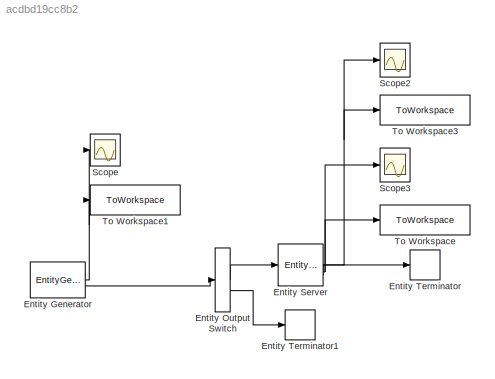
MODEL slx_acdbd19cc8b2
KIND model
CONFIG AbsTol = auto
CONFIG EnableMultiTasking = off
CONFIG FixedStep = auto
CONFIG MaxStep = auto
CONFIG MinStep = auto
CONFIG RelTol = 1e-3
CONFIG SampleTimeConstraint = Unconstrained
CONFIG SolverName = VariableStepAuto
CONFIG StartTime = 0.0
CONFIG StopTime = 60
BLOCK [EntityGenerator] Entity Generator
  AttributeName = patience
  EntityType = Structured
  EntityTypeName = Entity
  GenerateAction = entity.patience = randi([2, 5]);
  IntergenerationTimeAction = persistent rngInit;\nif isempty(rngInit)\n    seed = 145;\n    rng(seed);\n    rngInit = true;\nend\n\n% Pattern: Exponential distribution\nmu = 1 / lambda;\ndt = -60 * mu * log(1 - rand());
  NumberEntitiesDeparted = on
  OutputPortMap = o0,o3
  OutputPortMessageModes = n,m
  TimeSource = MATLAB action
BLOCK [EntityOutputSwitch] Entity Output Switch
  InputPortMap = u1
  InputPortMessageModes = m
  OutputPortMap = o0,o1
  OutputPortMessageModes = m,m
  SwitchAttributeName = Attribute1
BLOCK [EntityServer] Entity Server
  AverageWait = on
  Capacity = 1
  InputPortMap = u2
  InputPortMessageModes = m
  NumberEntitiesDeparted = on
  OutputPortMap = o0,o4,o9
  OutputPortMessageModes = n,n,m
  ServiceTimeAction = persistent rngInit;\nif isempty(rngInit)\n    seed = 125;\n    rng(seed);\n    rngInit = true;\nend\n\nmu = t;\ndt = -mu * log(1 - rand());
  ServiceTimeAttributeName = sertime
  ServiceTimeSource = MATLAB action
BLOCK [EntityTerminator] Entity Terminator
  InputPortMap = u0
  InputPortMessageModes = m
BLOCK [EntityTerminator] Entity Terminator1
  InputPortMap = u0
  InputPortMessageModes = m
BLOCK [Scope] Scope
  Floating = off
  NumInputPorts = 1
  ScopeSpecificationString = Simulink.scopes.TimeScopeBlockCfg('CurrentConfiguration', extmgr.ConfigurationSet(extmgr.Configuration('Core','General UI',true),extmgr.Configuration('Core','Source UI',true),extmgr.Configuration('Sources','WiredSimulink',true),extmgr.Configuration('Visuals','Time Domain',true,'SerializedDisplays',{struct('MinYLimReal','60.875','MaxYLimReal','72.125','YLabelReal','','MinYLimMag','60.875','MaxYLimM...<+1446ch>
BLOCK [Scope] Scope2
  Floating = off
  NumInputPorts = 1
  ScopeSpecificationString = Simulink.scopes.TimeScopeBlockCfg('CurrentConfiguration', extmgr.ConfigurationSet(extmgr.Configuration('Core','General UI',true),extmgr.Configuration('Core','Source UI',true),extmgr.Configuration('Sources','WiredSimulink',true,'DataLoggingVariableName','ScopeData2'),extmgr.Configuration('Visuals','Time Domain',true,'SerializedDisplays',{struct('MinYLimReal','37.25','MaxYLimReal','44.75','YLabelRea...<+1474ch>
BLOCK [Scope] Scope3
  Floating = off
  NumInputPorts = 1
  ScopeSpecificationString = Simulink.scopes.TimeScopeBlockCfg('CurrentConfiguration', extmgr.ConfigurationSet(extmgr.Configuration('Core','General UI',true),extmgr.Configuration('Core','Source UI',true),extmgr.Configuration('Sources','WiredSimulink',true,'DataLoggingVariableName','ScopeData2'),extmgr.Configuration('Visuals','Time Domain',true,'SerializedDisplays',{struct('MinYLimReal','2.33738','MaxYLimReal','2.51177','YLabe...<+1490ch>
BLOCK [ToWorkspace] To Workspace
  MaxDataPoints = inf
  SampleTime = -1
  Save2DSignal = 2-D array (concatenate along first dimension)
  VariableName = average_serv_time
BLOCK [ToWorkspace] To Workspace1
  MaxDataPoints = 1
  SampleTime = -1
  VariableName = calls
BLOCK [ToWorkspace] To Workspace3
  MaxDataPoints = 1
  SampleTime = -1
  VariableName = servs
NET Entity Generator:1 -> Scope:1, To Workspace1:1
LINE Entity Generator:2 -> Entity Output Switch:1
LINE Entity Output Switch:1 -> Entity Server:1
LINE Entity Output Switch:2 -> Entity Terminator1:1
NET Entity Server:1 -> Scope2:1, To Workspace3:1
NET Entity Server:2 -> Scope3:1, To Workspace:1
LINE Entity Server:3 -> Entity Terminator:1
note: NET lines group one-source signal fan-out (src -> all destinations, sorted); 1:1 wires keep LINE
